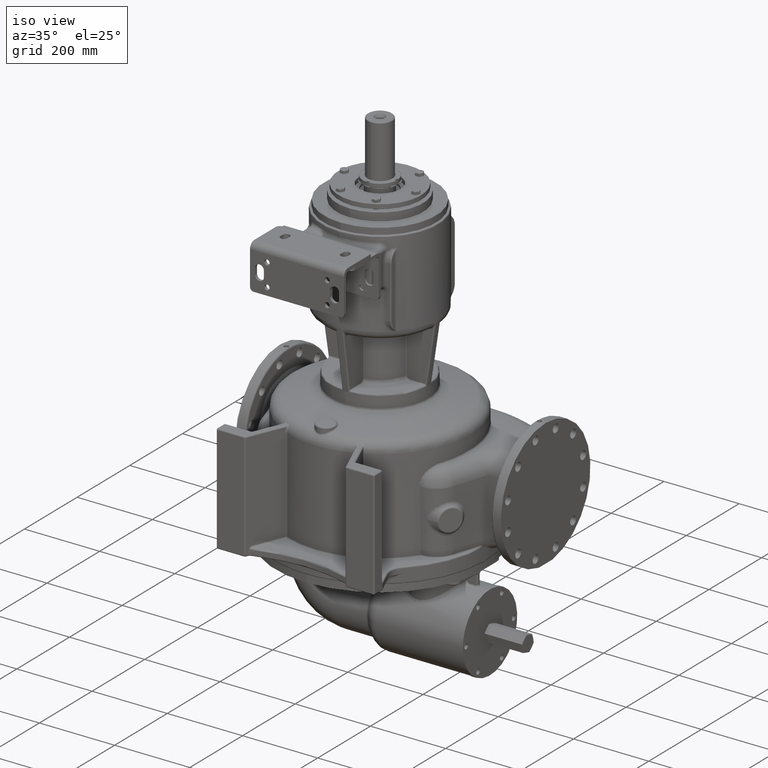
[diagram: clean part render]
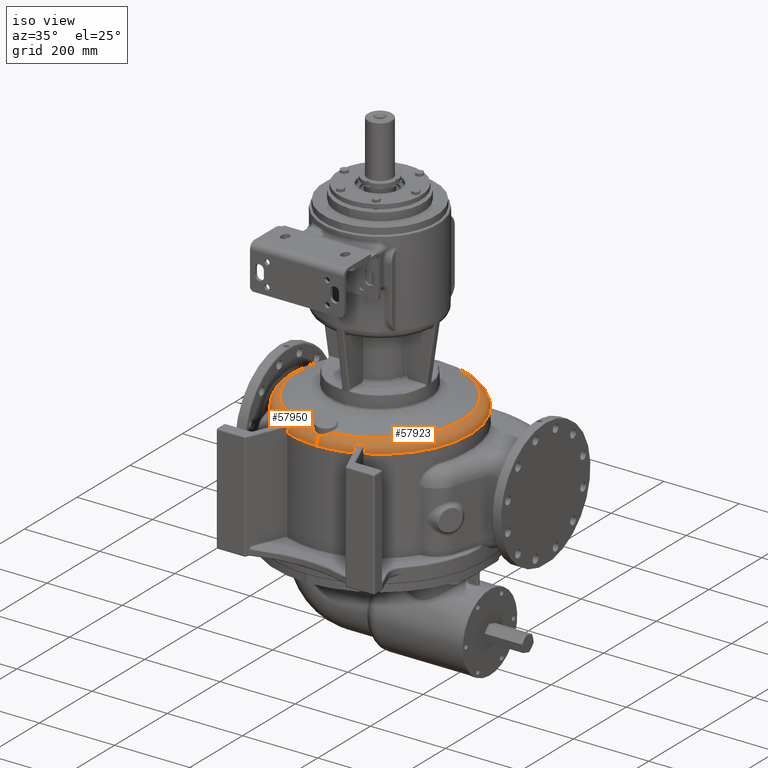
[diagram: same view with one multi-face feature highlighted, each face labeled with its STEP entity id]
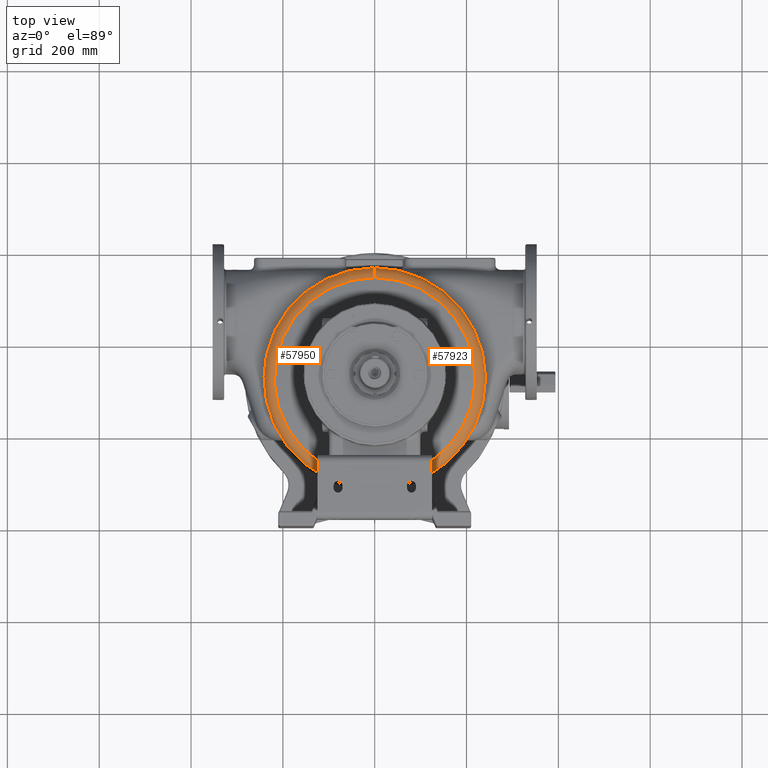
[diagram: same view with one multi-face feature highlighted, each face labeled with its STEP entity id]
A machine part, iso view. The highlighted faces form ONE feature: a constant-radius fillet chain: 2 tangent blend faces with common blend radius 30 mm. The faces share edges in the B-rep.
A second angle (top view) of the same feature is appended — it is thin or edge-on in the first view.
Their STEP definitions:
[1] entity #57950 (Torus):
#11223=CARTESIAN_POINT('',(-2.565774789250E1,1.047452701266E2,
1.894579651491E2));
#11255=CARTESIAN_POINT('',(0.E0,3.22E2,1.894579651493E2));
#11256=DIRECTION('',(0.E0,0.E0,-1.E0));
#11257=DIRECTION('',(-1.172847492344E-1,-9.930983272552E-1,0.E0));
#11258=AXIS2_PLACEMENT_3D('',#11255,#11256,#11257);
#11964=CARTESIAN_POINT('',(-5.709210411764E-14,9.070588235252E1,
1.825742798179E2));
#11966=CARTESIAN_POINT('',(-5.709210411764E-14,9.070588235252E1,
1.825742798179E2));
#11967=CARTESIAN_POINT('',(-2.192896605733E-1,9.070588239135E1,
1.825742798696E2));
#11968=CARTESIAN_POINT('',(-6.581445613274E-1,9.071044204159E1,
1.825778960211E2));
#11969=CARTESIAN_POINT('',(-1.317048623187E0,9.073101238360E1,
1.825941935350E2));
#11970=CARTESIAN_POINT('',(-1.976762631374E0,9.076539192583E1,
1.826213766129E2));
#11971=CARTESIAN_POINT('',(-2.637738304550E0,9.081372129978E1,
1.826594731405E2));
#11972=CARTESIAN_POINT('',(-3.300300639056E0,9.087618866301E1,
1.827085136885E2));
#11973=CARTESIAN_POINT('',(-3.964797911978E0,9.095303578133E1,
1.827685349463E2));
#11974=CARTESIAN_POINT('',(-4.631517438666E0,9.104455126193E1,
1.828395725926E2));
#11975=CARTESIAN_POINT('',(-5.300694982696E0,9.115106737823E1,
1.829216568119E2));
#11976=CARTESIAN_POINT('',(-5.972498919325E0,9.127295457373E1,
1.830148058470E2));
#11977=CARTESIAN_POINT('',(-6.647019160304E0,9.141061470943E1,
1.831190185966E2));
#11978=CARTESIAN_POINT('',(-7.324254611758E0,9.156447272795E1,
1.832342661811E2));
#11979=CARTESIAN_POINT('',(-8.004100687027E0,9.173496650296E1,
1.833604825187E2));
#11980=CARTESIAN_POINT('',(-8.686337163546E0,9.192253491971E1,
1.834975542199E2));
#11981=CARTESIAN_POINT('',(-9.370616991515E0,9.212760406728E1,
1.836453099896E2));
#11982=CARTESIAN_POINT('',(-1.005645682961E1,9.235057174195E1,
1.838035100037E2));
#11983=CARTESIAN_POINT('',(-1.074323037552E1,9.259179064021E1,
1.839718358446E2));
#11984=CARTESIAN_POINT('',(-1.143016528344E1,9.285155074258E1,
1.841498816308E2));
#11985=CARTESIAN_POINT('',(-1.211634464559E1,9.313006165094E1,
1.843371470921E2));
#11986=CARTESIAN_POINT('',(-1.280071388652E1,9.342743585630E1,
1.845330333695E2));
#11987=CARTESIAN_POINT('',(-1.348209361799E1,9.374367405050E1,
1.847368422528E2));
#11988=CARTESIAN_POINT('',(-1.415919831782E1,9.407865351289E1,
1.849477793241E2));
#11989=CARTESIAN_POINT('',(-1.483066002846E1,9.443212034899E1,
1.851649611286E2));
#11990=CARTESIAN_POINT('',(-1.549505726891E1,9.480368693006E1,
1.853874266601E2));
#11991=CARTESIAN_POINT('',(-1.615094650265E1,9.519283440111E1,
1.856141523550E2));
#11992=CARTESIAN_POINT('',(-1.679689406394E1,9.559891992066E1,
1.858440696537E2));
#11993=CARTESIAN_POINT('',(-1.743150788839E1,9.602118887650E1,
1.860760845095E2));
#11994=CARTESIAN_POINT('',(-1.805346549682E1,9.645879011868E1,
1.863090970499E2));
#11995=CARTESIAN_POINT('',(-1.866153839872E1,9.691079405453E1,
1.865420208032E2));
#11996=CARTESIAN_POINT('',(-1.925461169040E1,9.737621239323E1,
1.867738004339E2));
#11997=CARTESIAN_POINT('',(-1.983169707998E1,9.785401736296E1,
1.870034267109E2));
#11998=CARTESIAN_POINT('',(-2.039194107818E1,9.834316065293E1,
1.872299488845E2));
#11999=CARTESIAN_POINT('',(-2.093462785158E1,9.884259067457E1,
1.874524839208E2));
#12000=CARTESIAN_POINT('',(-2.145917743474E1,9.935126756130E1,
1.876702226279E2));
#12001=CARTESIAN_POINT('',(-2.196514036217E1,9.986817576129E1,
1.878824329840E2));
#12002=CARTESIAN_POINT('',(-2.245219013075E1,1.003923347762E2,
1.880884612475E2));
#12003=CARTESIAN_POINT('',(-2.292011297824E1,1.009228066534E2,
1.882877306889E2));
#12004=CARTESIAN_POINT('',(-2.336879801680E1,1.014587031601E2,
1.884797393478E2));
#12005=CARTESIAN_POINT('',(-2.379822332805E1,1.019991863757E2,
1.886640550836E2));
#12006=CARTESIAN_POINT('',(-2.420845219695E1,1.025434817187E2,
1.888403141379E2));
#12007=CARTESIAN_POINT('',(-2.459960152169E1,1.030908496820E2,
1.890082071359E2));
#12008=CARTESIAN_POINT('',(-2.497188405890E1,1.036406635200E2,
1.891674960838E2));
#12009=CARTESIAN_POINT('',(-2.532547710848E1,1.041922251617E2,
1.893179570208E2));
#12010=CARTESIAN_POINT('',(-2.554898560712E1,1.045608144669E2,
1.894122995096E2));
#12011=CARTESIAN_POINT('',(-2.565774789250E1,1.047452701266E2,
1.894579651491E2));
#12013=CARTESIAN_POINT('',(-5.168009492402E-14,1.11E2,1.604801903606E2));
#12014=DIRECTION('',(1.E0,0.E0,0.E0));
#12015=DIRECTION('',(0.E0,-6.764705882353E-1,7.364696485617E-1));
#12016=AXIS2_PLACEMENT_3D('',#12013,#12014,#12015);
#12018=CARTESIAN_POINT('',(0.E0,3.22E2,1.604801903606E2));
#12019=DIRECTION('',(0.E0,0.E0,-1.E0));
#12020=DIRECTION('',(0.E0,-1.E0,0.E0));
#12021=AXIS2_PLACEMENT_3D('',#12018,#12019,#12020);
#12023=CARTESIAN_POINT('',(-8.857923146788E1,9.786896744859E1,
1.604801903606E2));
#12024=CARTESIAN_POINT('',(-8.857923146390E1,9.786896745762E1,
1.607257938766E2));
#12025=CARTESIAN_POINT('',(-8.857691213536E1,9.787453726152E1,
1.612170022888E2));
#12026=CARTESIAN_POINT('',(-8.856647714541E1,9.789959657531E1,
1.619533735710E2));
#12027=CARTESIAN_POINT('',(-8.854909223022E1,9.794134585391E1,
1.626888624727E2));
#12028=CARTESIAN_POINT('',(-8.852476811183E1,9.799975923475E1,
1.634230137612E2));
#12029=CARTESIAN_POINT('',(-8.849351913173E1,9.807480212473E1,
1.641553939831E2));
#12030=CARTESIAN_POINT('',(-8.845536421525E1,9.816642887580E1,
1.648855562684E2));
#12031=CARTESIAN_POINT('',(-8.841032616562E1,9.827458448558E1,
1.656130627774E2));
#12032=CARTESIAN_POINT('',(-8.835843205252E1,9.839920366225E1,
1.663374738224E2));
#12033=CARTESIAN_POINT('',(-8.829971302121E1,9.854021128455E1,
1.670583527275E2));
#12034=CARTESIAN_POINT('',(-8.823420426104E1,9.869752247724E1,
1.677752652255E2));
#12035=CARTESIAN_POINT('',(-8.816194522944E1,9.887104207506E1,
1.684877776620E2));
#12036=CARTESIAN_POINT('',(-8.808297898147E1,9.906066623072E1,
1.691954631066E2));
#12037=CARTESIAN_POINT('',(-8.799735351571E1,9.926627919033E1,
1.698978897684E2));
#12038=CARTESIAN_POINT('',(-8.790511924428E1,9.948775935467E1,
1.705946416598E2));
#12039=CARTESIAN_POINT('',(-8.780633326604E1,9.972496905064E1,
1.712852859173E2));
#12040=CARTESIAN_POINT('',(-8.773614711172E1,9.989350119670E1,
1.717413706624E2));
#12041=CARTESIAN_POINT('',(-8.769998243822E1,9.998033977818E1,
1.719682576895E2));
#12043=CARTESIAN_POINT('',(-8.769998243822E1,9.998033977818E1,
1.719682576895E2));
#12044=CARTESIAN_POINT('',(-8.768715125589E1,1.000111500537E2,
1.720487570380E2));
#12045=CARTESIAN_POINT('',(-8.766399023406E1,1.000747538554E2,
1.722100063887E2));
#12046=CARTESIAN_POINT('',(-8.763682675166E1,1.001762336703E2,
1.724527152819E2));
#12047=CARTESIAN_POINT('',(-8.761738354423E1,1.002837163115E2,
1.726958656321E2));
#12048=CARTESIAN_POINT('',(-8.760577516909E1,1.003972015486E2,
1.729392636658E2));
#12049=CARTESIAN_POINT('',(-8.760212691849E1,1.005166507182E2,
1.731826408848E2));
#12050=CARTESIAN_POINT('',(-8.760656253072E1,1.006420129469E2,
1.734257260747E2));
#12051=CARTESIAN_POINT('',(-8.761920520553E1,1.007732157950E2,
1.736682264308E2));
#12052=CARTESIAN_POINT('',(-8.764017428245E1,1.009101612105E2,
1.739098258346E2));
#12053=CARTESIAN_POINT('',(-8.766958258790E1,1.010527238018E2,
1.741501866366E2));
#12054=CARTESIAN_POINT('',(-8.770753314840E1,1.012007470588E2,
1.743889481911E2));
#12055=CARTESIAN_POINT('',(-8.775411575021E1,1.013540407939E2,
1.746257278272E2));
#12056=CARTESIAN_POINT('',(-8.780940318694E1,1.015123783753E2,
1.748601215712E2));
#12057=CARTESIAN_POINT('',(-8.787344751495E1,1.016754949182E2,
1.750917063690E2));
#12058=CARTESIAN_POINT('',(-8.794627624934E1,1.018430858374E2,
1.753200426187E2));
#12059=CARTESIAN_POINT('',(-8.802788857028E1,1.020148059575E2,
1.755446772134E2));
#12060=CARTESIAN_POINT('',(-8.811825194752E1,1.021902700729E2,
1.757651481664E2));
#12061=CARTESIAN_POINT('',(-8.821729936209E1,1.023690542098E2,
1.759809891124E2));
#12062=CARTESIAN_POINT('',(-8.832492423450E1,1.025506948930E2,
1.761917320440E2));
#12063=CARTESIAN_POINT('',(-8.844099815685E1,1.027347210556E2,
1.763969429943E2));
#12064=CARTESIAN_POINT('',(-8.856525844716E1,1.029204884577E2,
1.765960434063E2));
#12065=CARTESIAN_POINT('',(-8.869730806607E1,1.031072302942E2,
1.767883974463E2));
#12066=CARTESIAN_POINT('',(-8.883682805592E1,1.032943635169E2,
1.769736244737E2));
#12067=CARTESIAN_POINT('',(-8.898352920574E1,1.034813815181E2,
1.771514530362E2));
#12068=CARTESIAN_POINT('',(-8.913708335812E1,1.036677602858E2,
1.773216222069E2));
#12069=CARTESIAN_POINT('',(-8.929715641264E1,1.038530032796E2,
1.774839219640E2));
#12070=CARTESIAN_POINT('',(-8.946340321792E1,1.040366332942E2,
1.776381799674E2));
#12071=CARTESIAN_POINT('',(-8.963547608781E1,1.042182017828E2,
1.777842654346E2));
#12072=CARTESIAN_POINT('',(-8.981302852069E1,1.043972911126E2,
1.779220860712E2));
#12073=CARTESIAN_POINT('',(-8.999572014643E1,1.045735177855E2,
1.780515860569E2));
#12074=CARTESIAN_POINT('',(-9.018322071426E1,1.047465339872E2,
1.781727427258E2));
#12075=CARTESIAN_POINT('',(-9.037521365920E1,1.049160283087E2,
1.782855628673E2));
#12076=CARTESIAN_POINT('',(-9.057139903370E1,1.050817255209E2,
1.783900786226E2));
#12077=CARTESIAN_POINT('',(-9.077149579118E1,1.052433855456E2,
1.784863431749E2));
#12078=CARTESIAN_POINT('',(-9.097524333603E1,1.054008016823E2,
1.785744263382E2));
#12079=CARTESIAN_POINT('',(-9.118240244670E1,1.055537983095E2,
1.786544102309E2));
#12080=CARTESIAN_POINT('',(-9.139275555419E1,1.057022281589E2,
1.787263851167E2));
#12081=CARTESIAN_POINT('',(-9.160610657355E1,1.058459694040E2,
1.787904455574E2));
#12082=CARTESIAN_POINT('',(-9.182228018493E1,1.059849225197E2,
1.788466868175E2));
#12083=CARTESIAN_POINT('',(-9.204112065480E1,1.061190071767E2,
1.788952017455E2));
#12084=CARTESIAN_POINT('',(-9.226249127852E1,1.062481594417E2,
1.789360778314E2));
#12085=CARTESIAN_POINT('',(-9.248626754968E1,1.063723267570E2,
1.789693949526E2));
#12086=CARTESIAN_POINT('',(-9.271235610624E1,1.064914749801E2,
1.789952242503E2));
#12087=CARTESIAN_POINT('',(-9.294062195607E1,1.066055517060E2,
1.790136222214E2));
#12088=CARTESIAN_POINT('',(-9.317108497492E1,1.067145786514E2,
1.790246396884E2));
#12089=CARTESIAN_POINT('',(-9.332599462862E1,1.067838135689E2,
1.790270812101E2));
#12090=CARTESIAN_POINT('',(-9.340378533016E1,1.068175800278E2,
1.790270812189E2));
#12092=CARTESIAN_POINT('',(0.E0,3.22E2,1.790270812189E2));
#12093=DIRECTION('',(0.E0,0.E0,-1.E0));
#12094=DIRECTION('',(-3.981746755554E-1,-9.173096138962E-1,0.E0));
#12095=AXIS2_PLACEMENT_3D('',#12092,#12093,#12094);
#12097=CARTESIAN_POINT('',(-1.005953368268E2,1.100841695678E2,
1.790270812189E2));
#12098=CARTESIAN_POINT('',(-1.006712083255E2,1.101201853611E2,
1.790270812106E2));
#12099=CARTESIAN_POINT('',(-1.008234986958E2,1.101904959731E2,
1.790246918793E2));
#12100=CARTESIAN_POINT('',(-1.010536812337E2,1.102908646703E2,
1.790139540435E2));
#12101=CARTESIAN_POINT('',(-1.012853299968E2,1.103860333114E2,
1.789960810396E2));
#12102=CARTESIAN_POINT('',(-1.015184699447E2,1.104760342029E2,
1.789710667564E2));
#12103=CARTESIAN_POINT('',(-1.017529835177E2,1.105608369967E2,
1.789388983401E2));
#12104=CARTESIAN_POINT('',(-1.019887961685E2,1.106404296692E2,
1.788995476081E2));
#12105=CARTESIAN_POINT('',(-1.022258075189E2,1.107147901320E2,
1.788529761120E2));
#12106=CARTESIAN_POINT('',(-1.024639076038E2,1.107838945067E2,
1.787991356883E2));
#12107=CARTESIAN_POINT('',(-1.027029696513E2,1.108477150655E2,
1.787379699908E2));
#12108=CARTESIAN_POINT('',(-1.029428478432E2,1.109062210974E2,
1.786694167163E2));
#12109=CARTESIAN_POINT('',(-1.031833749070E2,1.109593796222E2,
1.785934098018E2));
#12110=CARTESIAN_POINT('',(-1.034243592551E2,1.110071562807E2,
1.785098821969E2));
#12111=CARTESIAN_POINT('',(-1.036655830329E2,1.110495165996E2,
1.784187687037E2));
#12112=CARTESIAN_POINT('',(-1.039068007416E2,1.110864274784E2,
1.783200089238E2));
#12113=CARTESIAN_POINT('',(-1.041477370332E2,1.111178586057E2,
1.782135508358E2));
#12114=CARTESIAN_POINT('',(-1.043880859302E2,1.111437842529E2,
1.780993542622E2));
#12115=CARTESIAN_POINT('',(-1.046275103545E2,1.111641851317E2,
1.779773945375E2));
#12116=CARTESIAN_POINT('',(-1.048656425559E2,1.111790502966E2,
1.778476660275E2));
#12117=CARTESIAN_POINT('',(-1.051020853793E2,1.111883790515E2,
1.777101854982E2));
#12118=CARTESIAN_POINT('',(-1.053364141633E2,1.111921827157E2,
1.775649952702E2));
#12119=CARTESIAN_POINT('',(-1.055681789996E2,1.111904862984E2,
1.774121664333E2));
#12120=CARTESIAN_POINT('',(-1.057969098892E2,1.111833297502E2,
1.772517998888E2));
#12121=CARTESIAN_POINT('',(-1.060221157438E2,1.111707695694E2,
1.770840324687E2));
#12122=CARTESIAN_POINT('',(-1.062433056864E2,1.111528777275E2,
1.769090241498E2));
#12123=CARTESIAN_POINT('',(-1.064599451626E2,1.111297479244E2,
1.767270011679E2));
#12124=CARTESIAN_POINT('',(-1.066716035310E2,1.111014770481E2,
1.765381300718E2));
#12125=CARTESIAN_POINT('',(-1.068775709946E2,1.110682173970E2,
1.763428651107E2));
#12126=CARTESIAN_POINT('',(-1.070770803567E2,1.110301798497E2,
1.761418210539E2));
#12127=CARTESIAN_POINT('',(-1.072697219227E2,1.109875446443E2,
1.759353414900E2));
#12128=CARTESIAN_POINT('',(-1.074550818695E2,1.109405051539E2,
1.757238154155E2));
#12129=CARTESIAN_POINT('',(-1.076327815393E2,1.108892635588E2,
1.755076470359E2));
#12130=CARTESIAN_POINT('',(-1.078024849819E2,1.108340251994E2,
1.752872419298E2));
#12131=CARTESIAN_POINT('',(-1.079638949677E2,1.107749973506E2,
1.750630088179E2));
#12132=CARTESIAN_POINT('',(-1.081167552412E2,1.107123859128E2,
1.748353525947E2));
#12133=CARTESIAN_POINT('',(-1.082608488923E2,1.106463932288E2,
1.746046715098E2));
#12134=CARTESIAN_POINT('',(-1.083959967302E2,1.105772160130E2,
1.743713540728E2));
#12135=CARTESIAN_POINT('',(-1.085220551540E2,1.105050435290E2,
1.741357763245E2));
#12136=CARTESIAN_POINT('',(-1.086389136461E2,1.104300559789E2,
1.738982993813E2));
#12137=CARTESIAN_POINT('',(-1.087464913007E2,1.103524236124E2,
1.736592688211E2));
#12138=CARTESIAN_POINT('',(-1.088447339474E2,1.102723056703E2,
1.734190130886E2));
#12139=CARTESIAN_POINT('',(-1.089336102699E2,1.101898502809E2,
1.731778444490E2));
#12140=CARTESIAN_POINT('',(-1.090131095470E2,1.101051935313E2,
1.729360570264E2));
#12141=CARTESIAN_POINT('',(-1.090832374959E2,1.100184592312E2,
1.726939273028E2));
#12142=CARTESIAN_POINT('',(-1.091440108808E2,1.099297662874E2,
1.724517334397E2));
#12143=CARTESIAN_POINT('',(-1.091954680066E2,1.098391999811E2,
1.722096803126E2));
#12144=CARTESIAN_POINT('',(-1.092235684152E2,1.097776799219E2,
1.720486810752E2));
#12145=CARTESIAN_POINT('',(-1.092360852345E2,1.097466275243E2,
1.719682576895E2));
#12147=CARTESIAN_POINT('',(-1.092360852345E2,1.097466275243E2,
1.719682576895E2));
#12148=CARTESIAN_POINT('',(-1.092714100745E2,1.096589916324E2,
1.717412873228E2));
#12149=CARTESIAN_POINT('',(-1.093399654963E2,1.094889216337E2,
1.712850485117E2));
#12150=CARTESIAN_POINT('',(-1.094364538350E2,1.092495728906E2,
1.705942124937E2));
#12151=CARTESIAN_POINT('',(-1.095265402676E2,1.090261187542E2,
1.698973099456E2));
#12152=CARTESIAN_POINT('',(-1.096101697063E2,1.088186929837E2,
1.691947709429E2));
#12153=CARTESIAN_POINT('',(-1.096872934710E2,1.086274135351E2,
1.684870084049E2));
#12154=CARTESIAN_POINT('',(-1.097578650702E2,1.084523931846E2,
1.677744521069E2));
#12155=CARTESIAN_POINT('',(-1.098218427920E2,1.082937330427E2,
1.670575270533E2));
#12156=CARTESIAN_POINT('',(-1.098791884826E2,1.081515256127E2,
1.663366640388E2));
#12157=CARTESIAN_POINT('',(-1.099298680710E2,1.080258534826E2,
1.656122949336E2));
#12158=CARTESIAN_POINT('',(-1.099738514498E2,1.079167896300E2,
1.648848532594E2));
#12159=CARTESIAN_POINT('',(-1.100111124153E2,1.078243975679E2,
1.641547760751E2));
#12160=CARTESIAN_POINT('',(-1.100416289415E2,1.077487306756E2,
1.634224976715E2));
#12161=CARTESIAN_POINT('',(-1.100653827188E2,1.076898333322E2,
1.626884617149E2));
#12162=CARTESIAN_POINT('',(-1.100823598550E2,1.076477391971E2,
1.619530993733E2));
#12163=CARTESIAN_POINT('',(-1.100925500056E2,1.076224733476E2,
1.612168644826E2));
#12164=CARTESIAN_POINT('',(-1.100948149227E2,1.076168576553E2,
1.607257475518E2));
#12165=CARTESIAN_POINT('',(-1.100948149260E2,1.076168576441E2,
1.604801903606E2));
#12167=CARTESIAN_POINT('',(0.E0,3.22E2,1.604801903606E2));
#12168=DIRECTION('',(0.E0,0.E0,-1.E0));
#12169=DIRECTION('',(-4.568249581991E-1,-8.895566072861E-1,0.E0));
#12170=AXIS2_PLACEMENT_3D('',#12167,#12168,#12169);
#12172=CARTESIAN_POINT('',(2.584004746201E-14,5.33E2,1.604801903606E2));
#12173=DIRECTION('',(-1.E0,0.E0,0.E0));
#12174=DIRECTION('',(0.E0,2.588190451025E-1,9.659258262891E-1));
#12175=AXIS2_PLACEMENT_3D('',#12172,#12173,#12174);
#34660=CARTESIAN_POINT('',(2.679093320744E-14,5.407645713531E2,
1.894579651493E2));
#34661=CARTESIAN_POINT('',(2.951398785945E-14,5.63E2,1.604801903606E2));
#34662=VERTEX_POINT('',#34660);
#34663=VERTEX_POINT('',#34661);
#34679=VERTEX_POINT('',#11223);
#34681=VERTEX_POINT('',#11964);
#34682=CARTESIAN_POINT('',(-5.902797571890E-14,8.1E1,1.604801903606E2));
#34683=VERTEX_POINT('',#34682);
#35126=CARTESIAN_POINT('',(-1.100948149260E2,1.076168576441E2,
1.604801903606E2));
#35127=VERTEX_POINT('',#35126);
#35130=VERTEX_POINT('',#12147);
#35132=VERTEX_POINT('',#12097);
#35134=CARTESIAN_POINT('',(-9.340378533016E1,1.068175800278E2,
1.790270812189E2));
#35135=VERTEX_POINT('',#35134);
#35138=VERTEX_POINT('',#12043);
#35140=VERTEX_POINT('',#12023);
#57924=CARTESIAN_POINT('',(0.E0,3.22E2,1.604801903606E2));
#57925=DIRECTION('',(0.E0,0.E0,-1.E0));
#57926=DIRECTION('',(0.E0,-1.E0,0.E0));
#57927=AXIS2_PLACEMENT_3D('',#57924,#57925,#57926);
#57928=TOROIDAL_SURFACE('',#57927,2.11E2,3.E1);
#57929=ORIENTED_EDGE('',*,*,#56787,.F.);
#57931=ORIENTED_EDGE('',*,*,#57930,.F.);
#57932=ORIENTED_EDGE('',*,*,#57918,.T.);
#57934=ORIENTED_EDGE('',*,*,#57933,.T.);
#57936=ORIENTED_EDGE('',*,*,#57935,.T.);
#57938=ORIENTED_EDGE('',*,*,#57937,.T.);
#57940=ORIENTED_EDGE('',*,*,#57939,.T.);
#57942=ORIENTED_EDGE('',*,*,#57941,.T.);
#57944=ORIENTED_EDGE('',*,*,#57943,.T.);
#57946=ORIENTED_EDGE('',*,*,#57945,.T.);
#57947=ORIENTED_EDGE('',*,*,#57902,.F.);
#57948=EDGE_LOOP('',(#57929,#57931,#57932,#57934,#57936,#57938,#57940,#57942,
#57944,#57946,#57947));
#57949=FACE_OUTER_BOUND('',#57948,.F.);
#57950=ADVANCED_FACE('',(#57949),#57928,.T.);
#11259=CIRCLE('',#11258,2.187645713531E2);
#12012=B_SPLINE_CURVE_WITH_KNOTS('',3,(#11966,#11967,#11968,#11969,#11970,
#11971,#11972,#11973,#11974,#11975,#11976,#11977,#11978,#11979,#11980,#11981,
#11982,#11983,#11984,#11985,#11986,#11987,#11988,#11989,#11990,#11991,#11992,
#11993,#11994,#11995,#11996,#11997,#11998,#11999,#12000,#12001,#12002,#12003,
#12004,#12005,#12006,#12007,#12008,#12009,#12010,#12011),.UNSPECIFIED.,.F.,.F.,(
4,1,1,1,1,1,1,1,1,1,1,1,1,1,1,1,1,1,1,1,1,1,1,1,1,1,1,1,1,1,1,1,1,1,1,1,1,1,1,1,
1,1,1,4),(0.E0,2.325581395349E-2,4.651162790698E-2,6.976744186047E-2,
9.302325581395E-2,1.162790697674E-1,1.395348837209E-1,1.627906976744E-1,
1.860465116279E-1,2.093023255814E-1,2.325581395349E-1,2.558139534884E-1,
2.790697674419E-1,3.023255813953E-1,3.255813953488E-1,3.488372093023E-1,
3.720930232558E-1,3.953488372093E-1,4.186046511628E-1,4.418604651163E-1,
4.651162790698E-1,4.883720930233E-1,5.116279069767E-1,5.348837209302E-1,
5.581395348837E-1,5.813953488372E-1,6.046511627907E-1,6.279069767442E-1,
6.511627906977E-1,6.744186046512E-1,6.976744186047E-1,7.209302325581E-1,
7.441860465116E-1,7.674418604651E-1,7.906976744186E-1,8.139534883721E-1,
8.372093023256E-1,8.604651162791E-1,8.837209302326E-1,9.069767441860E-1,
9.302325581395E-1,9.534883720930E-1,9.767441860465E-1,1.E0),.UNSPECIFIED.);
#12017=CIRCLE('',#12016,3.E1);
#12022=CIRCLE('',#12021,2.41E2);
#12042=B_SPLINE_CURVE_WITH_KNOTS('',3,(#12023,#12024,#12025,#12026,#12027,
#12028,#12029,#12030,#12031,#12032,#12033,#12034,#12035,#12036,#12037,#12038,
#12039,#12040,#12041),.UNSPECIFIED.,.F.,.F.,(4,1,1,1,1,1,1,1,1,1,1,1,1,1,1,1,4),
(0.E0,6.25E-2,1.25E-1,1.875E-1,2.5E-1,3.125E-1,3.75E-1,4.375E-1,5.E-1,5.625E-1,
6.25E-1,6.875E-1,7.5E-1,8.125E-1,8.75E-1,9.375E-1,1.E0),.UNSPECIFIED.);
#12091=B_SPLINE_CURVE_WITH_KNOTS('',3,(#12043,#12044,#12045,#12046,#12047,
#12048,#12049,#12050,#12051,#12052,#12053,#12054,#12055,#12056,#12057,#12058,
#12059,#12060,#12061,#12062,#12063,#12064,#12065,#12066,#12067,#12068,#12069,
#12070,#12071,#12072,#12073,#12074,#12075,#12076,#12077,#12078,#12079,#12080,
#12081,#12082,#12083,#12084,#12085,#12086,#12087,#12088,#12089,#12090),
.UNSPECIFIED.,.F.,.F.,(4,1,1,1,1,1,1,1,1,1,1,1,1,1,1,1,1,1,1,1,1,1,1,1,1,1,1,1,
1,1,1,1,1,1,1,1,1,1,1,1,1,1,1,1,1,4),(0.E0,2.222222222222E-2,4.444444444444E-2,
6.666666666667E-2,8.888888888889E-2,1.111111111111E-1,1.333333333333E-1,
1.555555555556E-1,1.777777777778E-1,2.E-1,2.222222222222E-1,2.444444444444E-1,
2.666666666667E-1,2.888888888889E-1,3.111111111111E-1,3.333333333333E-1,
3.555555555556E-1,3.777777777778E-1,4.E-1,4.222222222222E-1,4.444444444444E-1,
4.666666666667E-1,4.888888888889E-1,5.111111111111E-1,5.333333333333E-1,
5.555555555556E-1,5.777777777778E-1,6.E-1,6.222222222222E-1,6.444444444444E-1,
6.666666666667E-1,6.888888888889E-1,7.111111111111E-1,7.333333333333E-1,
7.555555555556E-1,7.777777777778E-1,8.E-1,8.222222222222E-1,8.444444444444E-1,
8.666666666667E-1,8.888888888889E-1,9.111111111111E-1,9.333333333333E-1,
9.555555555556E-1,9.777777777778E-1,1.E0),.UNSPECIFIED.);
#12096=CIRCLE('',#12095,2.345799245014E2);
#12146=B_SPLINE_CURVE_WITH_KNOTS('',3,(#12097,#12098,#12099,#12100,#12101,
#12102,#12103,#12104,#12105,#12106,#12107,#12108,#12109,#12110,#12111,#12112,
#12113,#12114,#12115,#12116,#12117,#12118,#12119,#12120,#12121,#12122,#12123,
#12124,#12125,#12126,#12127,#12128,#12129,#12130,#12131,#12132,#12133,#12134,
#12135,#12136,#12137,#12138,#12139,#12140,#12141,#12142,#12143,#12144,#12145),
.UNSPECIFIED.,.F.,.F.,(4,1,1,1,1,1,1,1,1,1,1,1,1,1,1,1,1,1,1,1,1,1,1,1,1,1,1,1,
1,1,1,1,1,1,1,1,1,1,1,1,1,1,1,1,1,1,4),(0.E0,2.173913043478E-2,
4.347826086957E-2,6.521739130435E-2,8.695652173913E-2,1.086956521739E-1,
1.304347826087E-1,1.521739130435E-1,1.739130434783E-1,1.956521739130E-1,
2.173913043478E-1,2.391304347826E-1,2.608695652174E-1,2.826086956522E-1,
3.043478260870E-1,3.260869565217E-1,3.478260869565E-1,3.695652173913E-1,
3.913043478261E-1,4.130434782609E-1,4.347826086957E-1,4.565217391304E-1,
4.782608695652E-1,5.E-1,5.217391304348E-1,5.434782608696E-1,5.652173913043E-1,
5.869565217391E-1,6.086956521739E-1,6.304347826087E-1,6.521739130435E-1,
6.739130434783E-1,6.956521739130E-1,7.173913043478E-1,7.391304347826E-1,
7.608695652174E-1,7.826086956522E-1,8.043478260870E-1,8.260869565217E-1,
8.478260869565E-1,8.695652173913E-1,8.913043478261E-1,9.130434782609E-1,
9.347826086957E-1,9.565217391304E-1,9.782608695652E-1,1.E0),.UNSPECIFIED.);
#12166=B_SPLINE_CURVE_WITH_KNOTS('',3,(#12147,#12148,#12149,#12150,#12151,
#12152,#12153,#12154,#12155,#12156,#12157,#12158,#12159,#12160,#12161,#12162,
#12163,#12164,#12165),.UNSPECIFIED.,.F.,.F.,(4,1,1,1,1,1,1,1,1,1,1,1,1,1,1,1,4),
(0.E0,6.25E-2,1.25E-1,1.875E-1,2.5E-1,3.125E-1,3.75E-1,4.375E-1,5.E-1,5.625E-1,
6.25E-1,6.875E-1,7.5E-1,8.125E-1,8.75E-1,9.375E-1,1.E0),.UNSPECIFIED.);
#12171=CIRCLE('',#12170,2.41E2);
#12176=CIRCLE('',#12175,3.E1);
#56787=EDGE_CURVE('',#34679,#34662,#11259,.T.);
#57902=EDGE_CURVE('',#34662,#34663,#12176,.T.);
#57918=EDGE_CURVE('',#34681,#34683,#12017,.T.);
#57930=EDGE_CURVE('',#34681,#34679,#12012,.T.);
#57933=EDGE_CURVE('',#34683,#35140,#12022,.T.);
#57935=EDGE_CURVE('',#35140,#35138,#12042,.T.);
#57937=EDGE_CURVE('',#35138,#35135,#12091,.T.);
#57939=EDGE_CURVE('',#35135,#35132,#12096,.T.);
#57941=EDGE_CURVE('',#35132,#35130,#12146,.T.);
#57943=EDGE_CURVE('',#35130,#35127,#12166,.T.);
#57945=EDGE_CURVE('',#35127,#34663,#12171,.T.);
[2] entity #57923 (Torus):
#11688=CARTESIAN_POINT('',(2.565774789250E1,1.047452701266E2,1.894579651491E2));
#11760=CARTESIAN_POINT('',(0.E0,3.22E2,1.894579651493E2));
#11761=DIRECTION('',(0.E0,0.E0,1.E0));
#11762=DIRECTION('',(1.172847492344E-1,-9.930983272552E-1,0.E0));
#11763=AXIS2_PLACEMENT_3D('',#11760,#11761,#11762);
#11765=CARTESIAN_POINT('',(0.E0,3.22E2,1.604801903606E2));
#11766=DIRECTION('',(0.E0,0.E0,1.E0));
#11767=DIRECTION('',(4.568249581991E-1,-8.895566072861E-1,0.E0));
#11768=AXIS2_PLACEMENT_3D('',#11765,#11766,#11767);
#11770=CARTESIAN_POINT('',(1.100948149260E2,1.076168576441E2,1.604801903606E2));
#11771=CARTESIAN_POINT('',(1.100948149232E2,1.076168576537E2,1.607257481241E2));
#11772=CARTESIAN_POINT('',(1.100925499975E2,1.076224733657E2,1.612168662592E2));
#11773=CARTESIAN_POINT('',(1.100823597683E2,1.076477394148E2,1.619531045222E2));
#11774=CARTESIAN_POINT('',(1.100653825547E2,1.076898337393E2,1.626884676209E2));
#11775=CARTESIAN_POINT('',(1.100416287319E2,1.077487311973E2,1.634225033358E2));
#11776=CARTESIAN_POINT('',(1.100111121573E2,1.078243982098E2,1.641547816634E2));
#11777=CARTESIAN_POINT('',(1.099738511332E2,1.079167904168E2,1.648848589494E2));
#11778=CARTESIAN_POINT('',(1.099298677082E2,1.080258543838E2,1.656123005045E2));
#11779=CARTESIAN_POINT('',(1.098791880637E2,1.081515266525E2,1.663366696477E2));
#11780=CARTESIAN_POINT('',(1.098218423272E2,1.082937341959E2,1.670575325646E2));
#11781=CARTESIAN_POINT('',(1.097578645460E2,1.084523944847E2,1.677744576762E2));
#11782=CARTESIAN_POINT('',(1.096872929069E2,1.086274149328E2,1.684870138223E2));
#11783=CARTESIAN_POINT('',(1.096101690868E2,1.088186945191E2,1.691947763804E2));
#11784=CARTESIAN_POINT('',(1.095265395710E2,1.090261204790E2,1.698973155533E2));
#11785=CARTESIAN_POINT('',(1.094364531752E2,1.092495745239E2,1.705942173347E2));
#11786=CARTESIAN_POINT('',(1.093399652472E2,1.094889222507E2,1.712850501621E2));
#11787=CARTESIAN_POINT('',(1.092714099918E2,1.096589918386E2,1.717412878522E2));
#11788=CARTESIAN_POINT('',(1.092360852345E2,1.097466275243E2,1.719682576895E2));
#11790=CARTESIAN_POINT('',(1.092360852345E2,1.097466275243E2,1.719682576895E2));
#11791=CARTESIAN_POINT('',(1.092235682949E2,1.097776802207E2,1.720486818488E2));
#11792=CARTESIAN_POINT('',(1.091954675839E2,1.098392008683E2,1.722096826435E2));
#11793=CARTESIAN_POINT('',(1.091440098380E2,1.099297680105E2,1.724517380765E2));
#11794=CARTESIAN_POINT('',(1.090832356080E2,1.100184618047E2,1.726939343923E2));
#11795=CARTESIAN_POINT('',(1.090131067653E2,1.101051967500E2,1.729360661023E2));
#11796=CARTESIAN_POINT('',(1.089336063675E2,1.101898541807E2,1.731778557107E2));
#11797=CARTESIAN_POINT('',(1.088447287513E2,1.102723102008E2,1.734190265036E2));
#11798=CARTESIAN_POINT('',(1.087464846537E2,1.103524287124E2,1.736592843261E2));
#11799=CARTESIAN_POINT('',(1.086389053581E2,1.104300616091E2,1.738983169836E2));
#11800=CARTESIAN_POINT('',(1.085220450602E2,1.105050496256E2,1.741357959649E2));
#11801=CARTESIAN_POINT('',(1.083959846526E2,1.105772225179E2,1.743713757160E2));
#11802=CARTESIAN_POINT('',(1.082608346514E2,1.106464000789E2,1.746046951153E2));
#11803=CARTESIAN_POINT('',(1.081167386593E2,1.107123930372E2,1.748353781086E2));
#11804=CARTESIAN_POINT('',(1.079638759218E2,1.107750046536E2,1.750630361066E2));
#11805=CARTESIAN_POINT('',(1.078024632835E2,1.108340326036E2,1.752872709464E2));
#11806=CARTESIAN_POINT('',(1.076327571896E2,1.108892709323E2,1.755076775103E2));
#11807=CARTESIAN_POINT('',(1.074550542917E2,1.109405125103E2,1.757238477438E2));
#11808=CARTESIAN_POINT('',(1.072696922156E2,1.109875515813E2,1.759353741860E2));
#11809=CARTESIAN_POINT('',(1.070770456478E2,1.110301869070E2,1.761418570296E2));
#11810=CARTESIAN_POINT('',(1.068775343455E2,1.110682236031E2,1.763429005236E2));
#11811=CARTESIAN_POINT('',(1.066715820335E2,1.111014799715E2,1.765381494373E2));
#11812=CARTESIAN_POINT('',(1.064599217988E2,1.111297506866E2,1.767270213916E2));
#11813=CARTESIAN_POINT('',(1.062432701784E2,1.111528809896E2,1.769090530433E2));
#11814=CARTESIAN_POINT('',(1.060220764038E2,1.111707721633E2,1.770840625621E2));
#11815=CARTESIAN_POINT('',(1.057968639143E2,1.111833316868E2,1.772518330556E2));
#11816=CARTESIAN_POINT('',(1.055681283257E2,1.111904872070E2,1.774122008144E2));
#11817=CARTESIAN_POINT('',(1.053363590919E2,1.111921824149E2,1.775650304169E2));
#11818=CARTESIAN_POINT('',(1.051020268197E2,1.111883773729E2,1.777102205992E2));
#11819=CARTESIAN_POINT('',(1.048655812774E2,1.111790471376E2,1.778477004810E2));
#11820=CARTESIAN_POINT('',(1.046274471581E2,1.111641804382E2,1.779774278035E2));
#11821=CARTESIAN_POINT('',(1.043880216866E2,1.111437780315E2,1.780993858534E2));
#11822=CARTESIAN_POINT('',(1.041476725511E2,1.111178509079E2,1.782135803734E2));
#11823=CARTESIAN_POINT('',(1.039067366534E2,1.110864183910E2,1.783200361879E2));
#11824=CARTESIAN_POINT('',(1.036655199112E2,1.110495062319E2,1.784187935418E2));
#11825=CARTESIAN_POINT('',(1.034242975422E2,1.110071447413E2,1.785099045338E2));
#11826=CARTESIAN_POINT('',(1.031833154305E2,1.109593671403E2,1.785934294815E2));
#11827=CARTESIAN_POINT('',(1.029427913257E2,1.109062079367E2,1.786694336866E2));
#11828=CARTESIAN_POINT('',(1.027029166116E2,1.108477014899E2,1.787379843149E2));
#11829=CARTESIAN_POINT('',(1.024638586358E2,1.107838808372E2,1.787991474505E2));
#11830=CARTESIAN_POINT('',(1.022257631069E2,1.107147766926E2,1.788529854585E2));
#11831=CARTESIAN_POINT('',(1.019887568102E2,1.106404168192E2,1.788995547144E2));
#11832=CARTESIAN_POINT('',(1.017529495197E2,1.105608250373E2,1.789389034172E2));
#11833=CARTESIAN_POINT('',(1.015184420854E2,1.104760237418E2,1.789710701042E2));
#11834=CARTESIAN_POINT('',(1.012853072343E2,1.103860241877E2,1.789960830721E2));
#11835=CARTESIAN_POINT('',(1.010536666182E2,1.102908584500E2,1.790139549092E2));
#11836=CARTESIAN_POINT('',(1.008234872628E2,1.101904907954E2,1.790246921798E2));
#11837=CARTESIAN_POINT('',(1.006712041504E2,1.101201833779E2,1.790270812098E2));
#11838=CARTESIAN_POINT('',(1.005953368268E2,1.100841695678E2,1.790270812189E2));
#11840=CARTESIAN_POINT('',(0.E0,3.22E2,1.790270812189E2));
#11841=DIRECTION('',(0.E0,0.E0,-1.E0));
#11842=DIRECTION('',(4.288318236979E-1,-9.033843406790E-1,0.E0));
#11843=AXIS2_PLACEMENT_3D('',#11840,#11841,#11842);
#11845=CARTESIAN_POINT('',(9.340378533016E1,1.068175800278E2,1.790270812189E2));
#11846=CARTESIAN_POINT('',(9.332597592832E1,1.067838054525E2,1.790270812106E2));
#11847=CARTESIAN_POINT('',(9.317103012165E1,1.067145538661E2,1.790246384944E2));
#11848=CARTESIAN_POINT('',(9.294051858329E1,1.066055018645E2,1.790136161287E2));
#11849=CARTESIAN_POINT('',(9.271220359249E1,1.064913971361E2,1.789952099564E2));
#11850=CARTESIAN_POINT('',(9.248606951904E1,1.063722200806E2,1.789693694602E2));
#11851=CARTESIAN_POINT('',(9.226225006203E1,1.062480225918E2,1.789360381653E2));
#11852=CARTESIAN_POINT('',(9.204083962875E1,1.061188395277E2,1.788951452017E2));
#11853=CARTESIAN_POINT('',(9.182196299020E1,1.059847238196E2,1.788466109536E2));
#11854=CARTESIAN_POINT('',(9.160575716730E1,1.058457398115E2,1.787903482062E2));
#11855=CARTESIAN_POINT('',(9.139237819843E1,1.057019682933E2,1.787262644527E2));
#11856=CARTESIAN_POINT('',(9.118200183055E1,1.055535093896E2,1.786542648780E2));
#11857=CARTESIAN_POINT('',(9.097482435929E1,1.054004854394E2,1.785742553854E2));
#11858=CARTESIAN_POINT('',(9.077106342853E1,1.052430441548E2,1.784861461728E2));
#11859=CARTESIAN_POINT('',(9.057095837392E1,1.050813616631E2,1.783898556549E2));
#11860=CARTESIAN_POINT('',(9.037476987904E1,1.049156451974E2,1.782853146183E2));
#11861=CARTESIAN_POINT('',(9.018277908872E1,1.047461354204E2,1.781724705680E2));
#11862=CARTESIAN_POINT('',(8.999528594149E1,1.045731080982E2,1.780512920826E2));
#11863=CARTESIAN_POINT('',(8.981260686733E1,1.043968750958E2,1.779217730959E2));
#11864=CARTESIAN_POINT('',(8.963507190728E1,1.042177846387E2,1.777839370231E2));
#11865=CARTESIAN_POINT('',(8.946302110858E1,1.040362205368E2,1.776378404132E2));
#11866=CARTESIAN_POINT('',(8.929680060874E1,1.038526007111E2,1.774835763343E2));
#11867=CARTESIAN_POINT('',(8.913675745872E1,1.036673736683E2,1.773212760970E2));
#11868=CARTESIAN_POINT('',(8.898323666511E1,1.034810171959E2,1.771511132154E2));
#11869=CARTESIAN_POINT('',(8.883657050922E1,1.032940262278E2,1.769732968201E2));
#11870=CARTESIAN_POINT('',(8.869708923085E1,1.031069282989E2,1.767880920042E2));
#11871=CARTESIAN_POINT('',(8.856507661218E1,1.029202235054E2,1.765957645438E2));
#11872=CARTESIAN_POINT('',(8.844084670636E1,1.027344875261E2,1.763966873580E2));
#11873=CARTESIAN_POINT('',(8.832479342140E1,1.025504808065E2,1.761914883784E2));
#11874=CARTESIAN_POINT('',(8.821718390938E1,1.023688526226E2,1.759807503853E2));
#11875=CARTESIAN_POINT('',(8.811815300972E1,1.021900847420E2,1.757649197288E2));
#11876=CARTESIAN_POINT('',(8.802780424642E1,1.020146354620E2,1.755444584732E2));
#11877=CARTESIAN_POINT('',(8.794620570195E1,1.018429305485E2,1.753198351371E2));
#11878=CARTESIAN_POINT('',(8.787338949996E1,1.016753544348E2,1.750915108176E2));
#11879=CARTESIAN_POINT('',(8.780935656332E1,1.015122524314E2,1.748599388143E2));
#11880=CARTESIAN_POINT('',(8.775407932283E1,1.013539289556E2,1.746255585343E2));
#11881=CARTESIAN_POINT('',(8.770750572757E1,1.012006488309E2,1.743887929582E2));
#11882=CARTESIAN_POINT('',(8.766956298551E1,1.010526386225E2,1.741500459721E2));
#11883=CARTESIAN_POINT('',(8.764016131619E1,1.009100884385E2,1.739097001217E2));
#11884=CARTESIAN_POINT('',(8.761919771434E1,1.007731547730E2,1.736681160228E2));
#11885=CARTESIAN_POINT('',(8.760655936850E1,1.006419629475E2,1.734256311904E2));
#11886=CARTESIAN_POINT('',(8.760212696609E1,1.005166110226E2,1.731825617398E2));
#11887=CARTESIAN_POINT('',(8.760577732483E1,1.003971714173E2,1.729392004240E2));
#11888=CARTESIAN_POINT('',(8.761738674862E1,1.002836948618E2,1.726958181160E2));
#11889=CARTESIAN_POINT('',(8.763682994139E1,1.001762202817E2,1.724526838479E2));
#11890=CARTESIAN_POINT('',(8.766399236194E1,1.000747477432E2,1.722099910375E2));
#11891=CARTESIAN_POINT('',(8.768715206350E1,1.000111481145E2,1.720487519712E2));
#11892=CARTESIAN_POINT('',(8.769998243822E1,9.998033977818E1,1.719682576895E2));
#11894=CARTESIAN_POINT('',(8.769998243822E1,9.998033977818E1,1.719682576895E2));
#11895=CARTESIAN_POINT('',(8.773614720080E1,9.989350098303E1,1.717413701083E2));
#11896=CARTESIAN_POINT('',(8.780633353221E1,9.972496841131E1,1.712852841924E2));
#11897=CARTESIAN_POINT('',(8.790511994604E1,9.948775766887E1,1.705946366218E2));
#11898=CARTESIAN_POINT('',(8.799735425632E1,9.926627741127E1,1.698978839361E2));
#11899=CARTESIAN_POINT('',(8.808297963982E1,9.906066464959E1,1.691954574598E2));
#11900=CARTESIAN_POINT('',(8.816194582913E1,9.887104063473E1,1.684877720323E2));
#11901=CARTESIAN_POINT('',(8.823420481838E1,9.869752113886E1,1.677752594427E2));
#11902=CARTESIAN_POINT('',(8.829971351567E1,9.854021009724E1,1.670583470044E2));
#11903=CARTESIAN_POINT('',(8.835843249825E1,9.839920259209E1,1.663374679995E2));
#11904=CARTESIAN_POINT('',(8.841032655192E1,9.827458355823E1,1.656130569940E2));
#11905=CARTESIAN_POINT('',(8.845536455243E1,9.816642806644E1,1.648855503628E2));
#11906=CARTESIAN_POINT('',(8.849351940692E1,9.807480146425E1,1.641553881801E2));
#11907=CARTESIAN_POINT('',(8.852476833538E1,9.799975869833E1,1.634230078837E2));
#11908=CARTESIAN_POINT('',(8.854909240489E1,9.794134543449E1,1.626888563369E2));
#11909=CARTESIAN_POINT('',(8.856647723885E1,9.789959635145E1,1.619533682186E2));
#11910=CARTESIAN_POINT('',(8.857691214317E1,9.787453724238E1,1.612170004392E2));
#11911=CARTESIAN_POINT('',(8.857923146325E1,9.786896745909E1,1.607257932803E2));
#11912=CARTESIAN_POINT('',(8.857923146788E1,9.786896744859E1,1.604801903606E2));
#11914=CARTESIAN_POINT('',(0.E0,3.22E2,1.604801903606E2));
#11915=DIRECTION('',(0.E0,0.E0,1.E0));
#11916=DIRECTION('',(0.E0,-1.E0,0.E0));
#11917=AXIS2_PLACEMENT_3D('',#11914,#11915,#11916);
#11919=CARTESIAN_POINT('',(2.565774789250E1,1.047452701266E2,1.894579651491E2));
#11920=CARTESIAN_POINT('',(2.554898576142E1,1.045608147275E2,1.894122995741E2));
#11921=CARTESIAN_POINT('',(2.532547760886E1,1.041922259835E2,1.893179572324E2));
#11922=CARTESIAN_POINT('',(2.497188529737E1,1.036406654180E2,1.891674966119E2));
#11923=CARTESIAN_POINT('',(2.459960346899E1,1.030908524988E2,1.890082079705E2));
#11924=CARTESIAN_POINT('',(2.420845498441E1,1.025434855350E2,1.888403153353E2));
#11925=CARTESIAN_POINT('',(2.379822699680E1,1.019991911340E2,1.886640566599E2));
#11926=CARTESIAN_POINT('',(2.336880264184E1,1.014587088480E2,1.884797413310E2));
#11927=CARTESIAN_POINT('',(2.292011860878E1,1.009228132219E2,1.882877330940E2));
#11928=CARTESIAN_POINT('',(2.245219681288E1,1.003923421732E2,1.880884640855E2));
#11929=CARTESIAN_POINT('',(2.196514812639E1,9.986818391800E1,1.878824362566E2));
#11930=CARTESIAN_POINT('',(2.145918629799E1,9.935127639803E1,1.876702263287E2));
#11931=CARTESIAN_POINT('',(2.093463781266E1,9.884260009847E1,1.874524880334E2));
#11932=CARTESIAN_POINT('',(2.039195211601E1,9.834317055966E1,1.872299533822E2));
#11933=CARTESIAN_POINT('',(1.983170915201E1,9.785402763833E1,1.870034315565E2));
#11934=CARTESIAN_POINT('',(1.925462473136E1,9.737622291517E1,1.867738055801E2));
#11935=CARTESIAN_POINT('',(1.866155231876E1,9.691080469467E1,1.865420261927E2));
#11936=CARTESIAN_POINT('',(1.805348018472E1,9.645880074777E1,1.863091026177E2));
#11937=CARTESIAN_POINT('',(1.743152321464E1,9.602119936813E1,1.860760901851E2));
#11938=CARTESIAN_POINT('',(1.679690986076E1,9.559893014119E1,1.858440753554E2));
#11939=CARTESIAN_POINT('',(1.615096278106E1,9.519284434962E1,1.856141580692E2));
#11940=CARTESIAN_POINT('',(1.549507449636E1,9.480369686746E1,1.853874325278E2));
#11941=CARTESIAN_POINT('',(1.483067886906E1,9.443213059284E1,1.851649673386E2));
#11942=CARTESIAN_POINT('',(1.415921942318E1,9.407866431026E1,1.849477860362E2));
#11943=CARTESIAN_POINT('',(1.348211738080E1,9.374368546507E1,1.847368495207E2));
#11944=CARTESIAN_POINT('',(1.280074028332E1,9.342744773691E1,1.845330411076E2));
#11945=CARTESIAN_POINT('',(1.211637354086E1,9.313007381068E1,1.843371551826E2));
#11946=CARTESIAN_POINT('',(1.143019648805E1,9.285156299039E1,1.841498899444E2));
#11947=CARTESIAN_POINT('',(1.074326360329E1,9.259180276997E1,1.839718442332E2));
#11948=CARTESIAN_POINT('',(1.005649171367E1,9.235058354708E1,1.838035183109E2));
#11949=CARTESIAN_POINT('',(9.370653081047E0,9.212761534604E1,1.836453180552E2));
#11950=CARTESIAN_POINT('',(8.686373933946E0,9.192254548467E1,1.834975618881E2));
#11951=CARTESIAN_POINT('',(8.004137548242E0,9.173497618819E1,1.833604896447E2));
#11952=CARTESIAN_POINT('',(7.324290918377E0,9.156448139576E1,1.832342726382E2));
#11953=CARTESIAN_POINT('',(6.647054229196E0,9.141062225670E1,1.831190242823E2));
#11954=CARTESIAN_POINT('',(5.972532031787E0,9.127296093567E1,1.830148106881E2));
#11955=CARTESIAN_POINT('',(5.300725436443E0,9.115107253785E1,1.829216607735E2));
#11956=CARTESIAN_POINT('',(4.631544421804E0,9.104455523264E1,1.828395756652E2));
#11957=CARTESIAN_POINT('',(3.964821002121E0,9.095303866414E1,1.827685371924E2));
#11958=CARTESIAN_POINT('',(3.300318345416E0,9.087619048666E1,1.827085151175E2));
#11959=CARTESIAN_POINT('',(2.637751841512E0,9.081372240225E1,1.826594740086E2));
#11960=CARTESIAN_POINT('',(1.976771422441E0,9.076539245117E1,1.826213770280E2));
#11961=CARTESIAN_POINT('',(1.317054579255E0,9.073101261813E1,1.825941937221E2));
#11962=CARTESIAN_POINT('',(6.581474776955E-1,9.071044207967E1,
1.825778960484E2));
#11963=CARTESIAN_POINT('',(2.192906311050E-1,9.070588240007E1,
1.825742798836E2));
#11964=CARTESIAN_POINT('',(-5.709210411764E-14,9.070588235252E1,
1.825742798179E2));
#12013=CARTESIAN_POINT('',(-5.168009492402E-14,1.11E2,1.604801903606E2));
#12014=DIRECTION('',(1.E0,0.E0,0.E0));
#12015=DIRECTION('',(0.E0,-6.764705882353E-1,7.364696485617E-1));
#12016=AXIS2_PLACEMENT_3D('',#12013,#12014,#12015);
#12172=CARTESIAN_POINT('',(2.584004746201E-14,5.33E2,1.604801903606E2));
#12173=DIRECTION('',(-1.E0,0.E0,0.E0));
#12174=DIRECTION('',(0.E0,2.588190451025E-1,9.659258262891E-1));
#12175=AXIS2_PLACEMENT_3D('',#12172,#12173,#12174);
#34660=CARTESIAN_POINT('',(2.679093320744E-14,5.407645713531E2,
1.894579651493E2));
#34661=CARTESIAN_POINT('',(2.951398785945E-14,5.63E2,1.604801903606E2));
#34662=VERTEX_POINT('',#34660);
#34663=VERTEX_POINT('',#34661);
#34676=VERTEX_POINT('',#11688);
#34681=VERTEX_POINT('',#11964);
#34682=CARTESIAN_POINT('',(-5.902797571890E-14,8.1E1,1.604801903606E2));
#34683=VERTEX_POINT('',#34682);
#35080=CARTESIAN_POINT('',(1.100948149260E2,1.076168576441E2,1.604801903606E2));
#35081=VERTEX_POINT('',#35080);
#35084=VERTEX_POINT('',#11788);
#35086=VERTEX_POINT('',#11838);
#35088=CARTESIAN_POINT('',(9.340378533016E1,1.068175800278E2,1.790270812189E2));
#35089=VERTEX_POINT('',#35088);
#35092=VERTEX_POINT('',#11892);
#35094=VERTEX_POINT('',#11912);
#57896=CARTESIAN_POINT('',(0.E0,3.22E2,1.604801903606E2));
#57897=DIRECTION('',(0.E0,0.E0,-1.E0));
#57898=DIRECTION('',(0.E0,-1.E0,0.E0));
#57899=AXIS2_PLACEMENT_3D('',#57896,#57897,#57898);
#57900=TOROIDAL_SURFACE('',#57899,2.11E2,3.E1);
#57901=ORIENTED_EDGE('',*,*,#57891,.T.);
#57903=ORIENTED_EDGE('',*,*,#57902,.T.);
#57905=ORIENTED_EDGE('',*,*,#57904,.F.);
#57907=ORIENTED_EDGE('',*,*,#57906,.T.);
#57909=ORIENTED_EDGE('',*,*,#57908,.T.);
#57911=ORIENTED_EDGE('',*,*,#57910,.T.);
#57913=ORIENTED_EDGE('',*,*,#57912,.T.);
#57915=ORIENTED_EDGE('',*,*,#57914,.T.);
#57917=ORIENTED_EDGE('',*,*,#57916,.F.);
#57919=ORIENTED_EDGE('',*,*,#57918,.F.);
#57920=ORIENTED_EDGE('',*,*,#57167,.F.);
#57921=EDGE_LOOP('',(#57901,#57903,#57905,#57907,#57909,#57911,#57913,#57915,
#57917,#57919,#57920));
#57922=FACE_OUTER_BOUND('',#57921,.F.);
#57923=ADVANCED_FACE('',(#57922),#57900,.T.);
#11764=CIRCLE('',#11763,2.187645713531E2);
#11769=CIRCLE('',#11768,2.41E2);
#11789=B_SPLINE_CURVE_WITH_KNOTS('',3,(#11770,#11771,#11772,#11773,#11774,
#11775,#11776,#11777,#11778,#11779,#11780,#11781,#11782,#11783,#11784,#11785,
#11786,#11787,#11788),.UNSPECIFIED.,.F.,.F.,(4,1,1,1,1,1,1,1,1,1,1,1,1,1,1,1,4),
(0.E0,6.25E-2,1.25E-1,1.875E-1,2.5E-1,3.125E-1,3.75E-1,4.375E-1,5.E-1,5.625E-1,
6.25E-1,6.875E-1,7.5E-1,8.125E-1,8.75E-1,9.375E-1,1.E0),.UNSPECIFIED.);
#11839=B_SPLINE_CURVE_WITH_KNOTS('',3,(#11790,#11791,#11792,#11793,#11794,
#11795,#11796,#11797,#11798,#11799,#11800,#11801,#11802,#11803,#11804,#11805,
#11806,#11807,#11808,#11809,#11810,#11811,#11812,#11813,#11814,#11815,#11816,
#11817,#11818,#11819,#11820,#11821,#11822,#11823,#11824,#11825,#11826,#11827,
#11828,#11829,#11830,#11831,#11832,#11833,#11834,#11835,#11836,#11837,#11838),
.UNSPECIFIED.,.F.,.F.,(4,1,1,1,1,1,1,1,1,1,1,1,1,1,1,1,1,1,1,1,1,1,1,1,1,1,1,1,
1,1,1,1,1,1,1,1,1,1,1,1,1,1,1,1,1,1,4),(0.E0,2.173913043478E-2,
4.347826086957E-2,6.521739130435E-2,8.695652173913E-2,1.086956521739E-1,
1.304347826087E-1,1.521739130435E-1,1.739130434783E-1,1.956521739130E-1,
2.173913043478E-1,2.391304347826E-1,2.608695652174E-1,2.826086956522E-1,
3.043478260870E-1,3.260869565217E-1,3.478260869565E-1,3.695652173913E-1,
3.913043478261E-1,4.130434782609E-1,4.347826086957E-1,4.565217391304E-1,
4.782608695652E-1,5.E-1,5.217391304348E-1,5.434782608696E-1,5.652173913043E-1,
5.869565217391E-1,6.086956521739E-1,6.304347826087E-1,6.521739130435E-1,
6.739130434783E-1,6.956521739130E-1,7.173913043478E-1,7.391304347826E-1,
7.608695652174E-1,7.826086956522E-1,8.043478260870E-1,8.260869565217E-1,
8.478260869565E-1,8.695652173913E-1,8.913043478261E-1,9.130434782609E-1,
9.347826086957E-1,9.565217391304E-1,9.782608695652E-1,1.E0),.UNSPECIFIED.);
#11844=CIRCLE('',#11843,2.345799245014E2);
#11893=B_SPLINE_CURVE_WITH_KNOTS('',3,(#11845,#11846,#11847,#11848,#11849,
#11850,#11851,#11852,#11853,#11854,#11855,#11856,#11857,#11858,#11859,#11860,
#11861,#11862,#11863,#11864,#11865,#11866,#11867,#11868,#11869,#11870,#11871,
#11872,#11873,#11874,#11875,#11876,#11877,#11878,#11879,#11880,#11881,#11882,
#11883,#11884,#11885,#11886,#11887,#11888,#11889,#11890,#11891,#11892),
.UNSPECIFIED.,.F.,.F.,(4,1,1,1,1,1,1,1,1,1,1,1,1,1,1,1,1,1,1,1,1,1,1,1,1,1,1,1,
1,1,1,1,1,1,1,1,1,1,1,1,1,1,1,1,1,4),(0.E0,2.222222222222E-2,4.444444444444E-2,
6.666666666667E-2,8.888888888889E-2,1.111111111111E-1,1.333333333333E-1,
1.555555555556E-1,1.777777777778E-1,2.E-1,2.222222222222E-1,2.444444444444E-1,
2.666666666667E-1,2.888888888889E-1,3.111111111111E-1,3.333333333333E-1,
3.555555555556E-1,3.777777777778E-1,4.E-1,4.222222222222E-1,4.444444444444E-1,
4.666666666667E-1,4.888888888889E-1,5.111111111111E-1,5.333333333333E-1,
5.555555555556E-1,5.777777777778E-1,6.E-1,6.222222222222E-1,6.444444444444E-1,
6.666666666667E-1,6.888888888889E-1,7.111111111111E-1,7.333333333333E-1,
7.555555555556E-1,7.777777777778E-1,8.E-1,8.222222222222E-1,8.444444444444E-1,
8.666666666667E-1,8.888888888889E-1,9.111111111111E-1,9.333333333333E-1,
9.555555555556E-1,9.777777777778E-1,1.E0),.UNSPECIFIED.);
#11913=B_SPLINE_CURVE_WITH_KNOTS('',3,(#11894,#11895,#11896,#11897,#11898,
#11899,#11900,#11901,#11902,#11903,#11904,#11905,#11906,#11907,#11908,#11909,
#11910,#11911,#11912),.UNSPECIFIED.,.F.,.F.,(4,1,1,1,1,1,1,1,1,1,1,1,1,1,1,1,4),
(0.E0,6.25E-2,1.25E-1,1.875E-1,2.5E-1,3.125E-1,3.75E-1,4.375E-1,5.E-1,5.625E-1,
6.25E-1,6.875E-1,7.5E-1,8.125E-1,8.75E-1,9.375E-1,1.E0),.UNSPECIFIED.);
#11918=CIRCLE('',#11917,2.41E2);
#11965=B_SPLINE_CURVE_WITH_KNOTS('',3,(#11919,#11920,#11921,#11922,#11923,
#11924,#11925,#11926,#11927,#11928,#11929,#11930,#11931,#11932,#11933,#11934,
#11935,#11936,#11937,#11938,#11939,#11940,#11941,#11942,#11943,#11944,#11945,
#11946,#11947,#11948,#11949,#11950,#11951,#11952,#11953,#11954,#11955,#11956,
#11957,#11958,#11959,#11960,#11961,#11962,#11963,#11964),.UNSPECIFIED.,.F.,.F.,(
4,1,1,1,1,1,1,1,1,1,1,1,1,1,1,1,1,1,1,1,1,1,1,1,1,1,1,1,1,1,1,1,1,1,1,1,1,1,1,1,
1,1,1,4),(0.E0,2.325581395349E-2,4.651162790698E-2,6.976744186047E-2,
9.302325581395E-2,1.162790697674E-1,1.395348837209E-1,1.627906976744E-1,
1.860465116279E-1,2.093023255814E-1,2.325581395349E-1,2.558139534884E-1,
2.790697674419E-1,3.023255813953E-1,3.255813953488E-1,3.488372093023E-1,
3.720930232558E-1,3.953488372093E-1,4.186046511628E-1,4.418604651163E-1,
4.651162790698E-1,4.883720930233E-1,5.116279069767E-1,5.348837209302E-1,
5.581395348837E-1,5.813953488372E-1,6.046511627907E-1,6.279069767442E-1,
6.511627906977E-1,6.744186046512E-1,6.976744186047E-1,7.209302325581E-1,
7.441860465116E-1,7.674418604651E-1,7.906976744186E-1,8.139534883721E-1,
8.372093023256E-1,8.604651162791E-1,8.837209302326E-1,9.069767441860E-1,
9.302325581395E-1,9.534883720930E-1,9.767441860465E-1,1.E0),.UNSPECIFIED.);
#12017=CIRCLE('',#12016,3.E1);
#12176=CIRCLE('',#12175,3.E1);
#57167=EDGE_CURVE('',#34676,#34681,#11965,.T.);
#57891=EDGE_CURVE('',#34676,#34662,#11764,.T.);
#57902=EDGE_CURVE('',#34662,#34663,#12176,.T.);
#57904=EDGE_CURVE('',#35081,#34663,#11769,.T.);
#57906=EDGE_CURVE('',#35081,#35084,#11789,.T.);
#57908=EDGE_CURVE('',#35084,#35086,#11839,.T.);
#57910=EDGE_CURVE('',#35086,#35089,#11844,.T.);
#57912=EDGE_CURVE('',#35089,#35092,#11893,.T.);
#57914=EDGE_CURVE('',#35092,#35094,#11913,.T.);
#57916=EDGE_CURVE('',#34683,#35094,#11918,.T.);
#57918=EDGE_CURVE('',#34681,#34683,#12017,.T.);